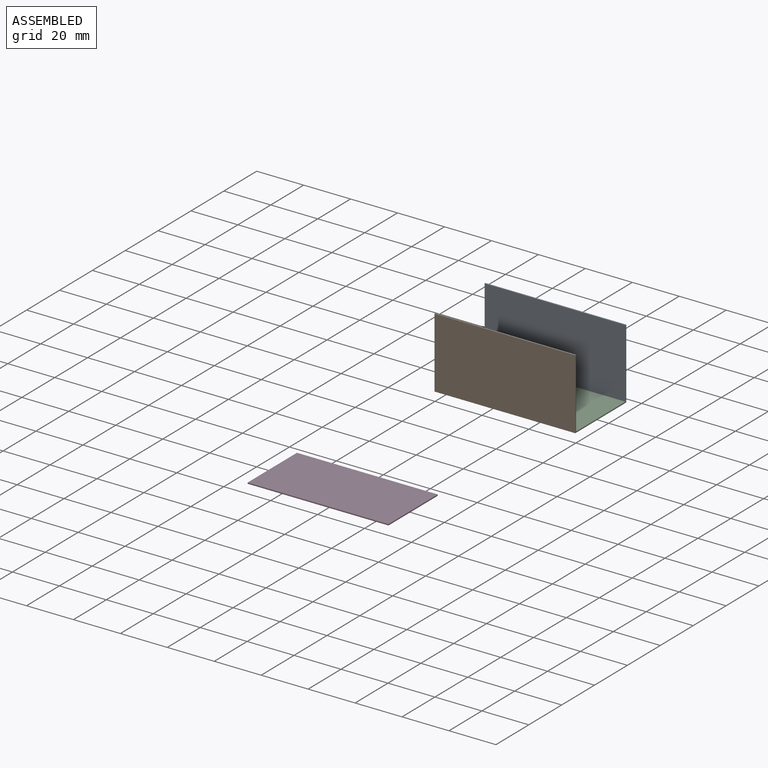
[diagram: assembled view]
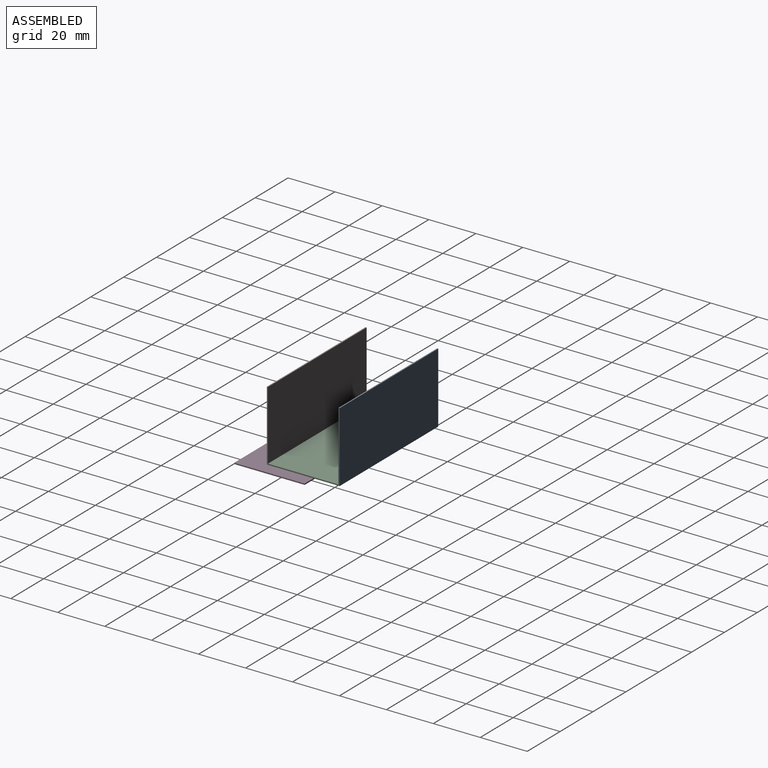
[diagram: assembled view, second angle]
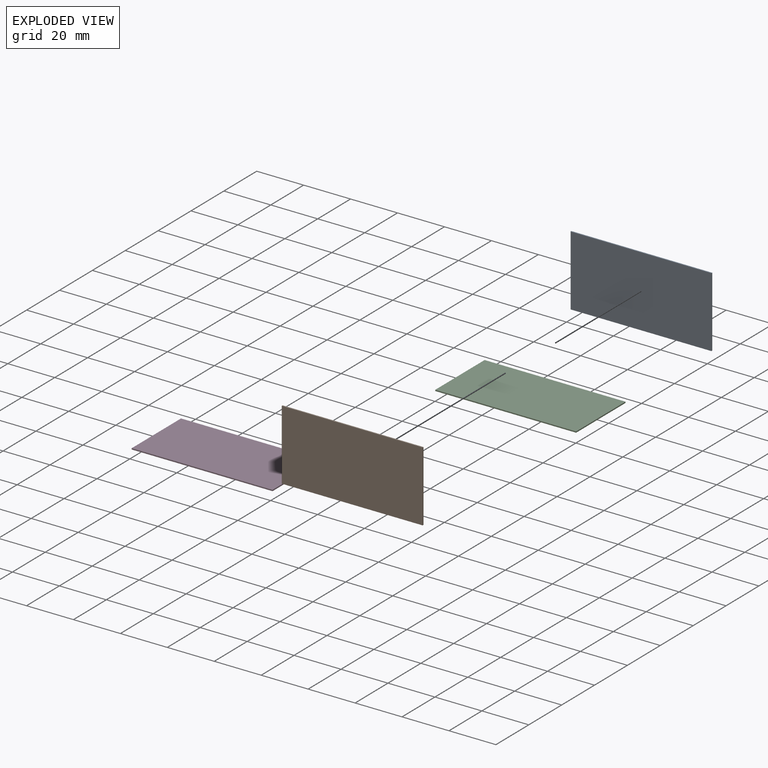
[diagram: exploded view]
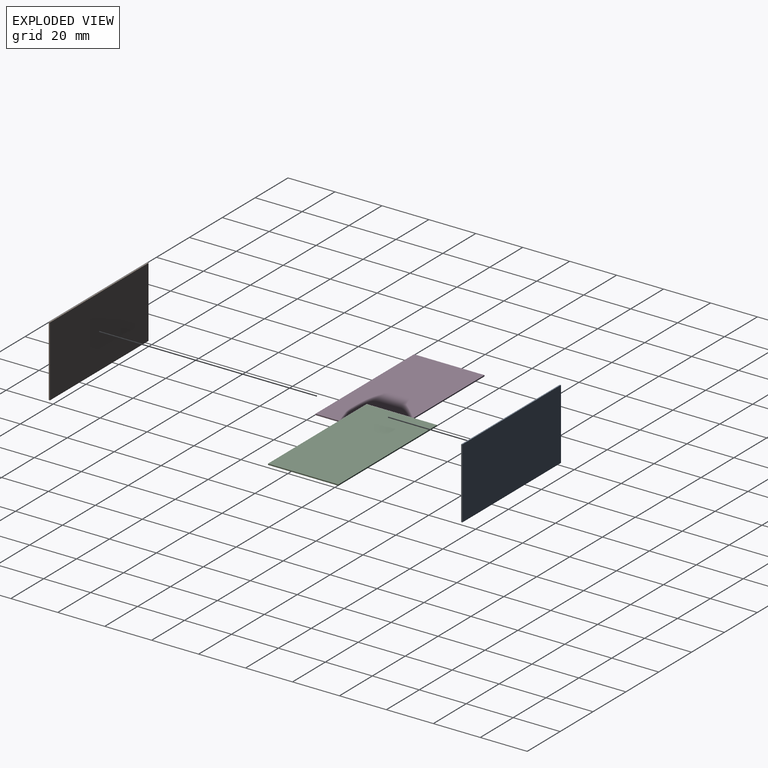
[diagram: exploded view, second angle]
ASSEMBLY  parts=4 mates=2
PART A: 6 faces, bbox 60x30x0.5 mm
  f0: plane 60x0.5mm, normal (0,-1,0), area 30mm2, adj f1,f3,f4,f5
  f1: plane 30x0.5mm, normal (1,0,0), area 15mm2, adj f0,f2,f4,f5
  f2: plane 60x0.5mm, normal (0,1,0), area 30mm2, adj f1,f3,f4,f5
  f3: plane 30x0.5mm, normal (-1,0,0), area 15mm2, adj f0,f2,f4,f5
  f4: plane 60x30mm, normal (0,0,1), area 1800mm2, adj f0,f1,f2,f3
  f5: plane 60x30mm, normal (0,0,-1), area 1800mm2, adj f0,f1,f2,f3
PART B: same geometry as A
PART C: same geometry as A
PART D: same geometry as A
PLACE A rot(axis=(1,0,0),90deg) t=(5.07,20.61,18.03)mm
PLACE B rot(axis=(-1,0,0),90deg) t=(5.07,-10.39,18.03)mm
PLACE C t=(5.07,5.11,3.03)mm fixed
PLACE D t=(-41.82,-42.11,-27.19)mm
MATE fastened B.f4 <-> C.f0  axis (0,1,0) through (35.07,-9.89,3.03)mm
MATE fastened A.f4 <-> C.f2  axis (0,-1,0) through (35.07,20.11,3.03)mm
